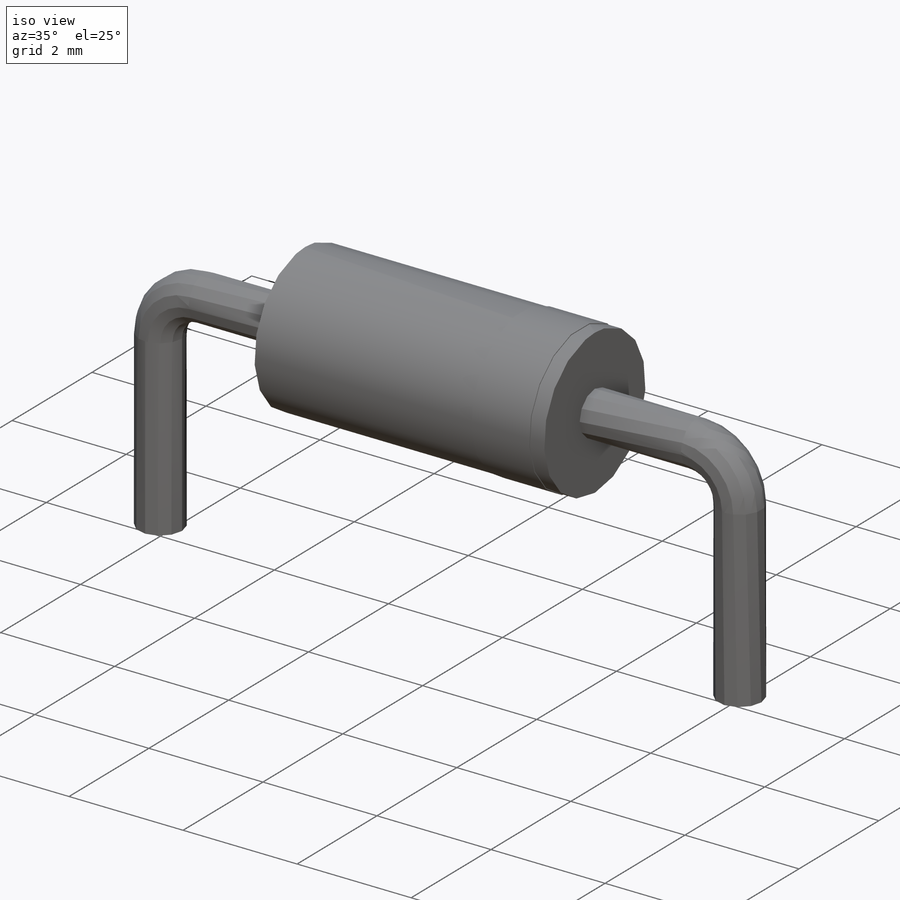
[diagram: iso view]
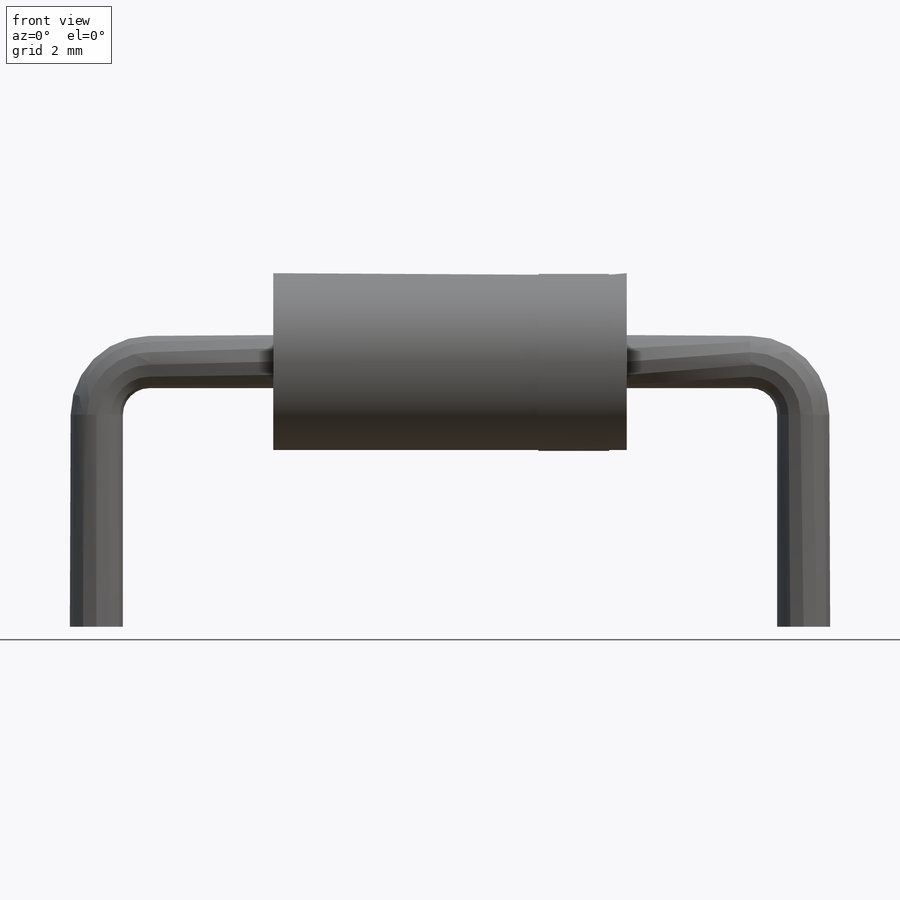
[diagram: front view]
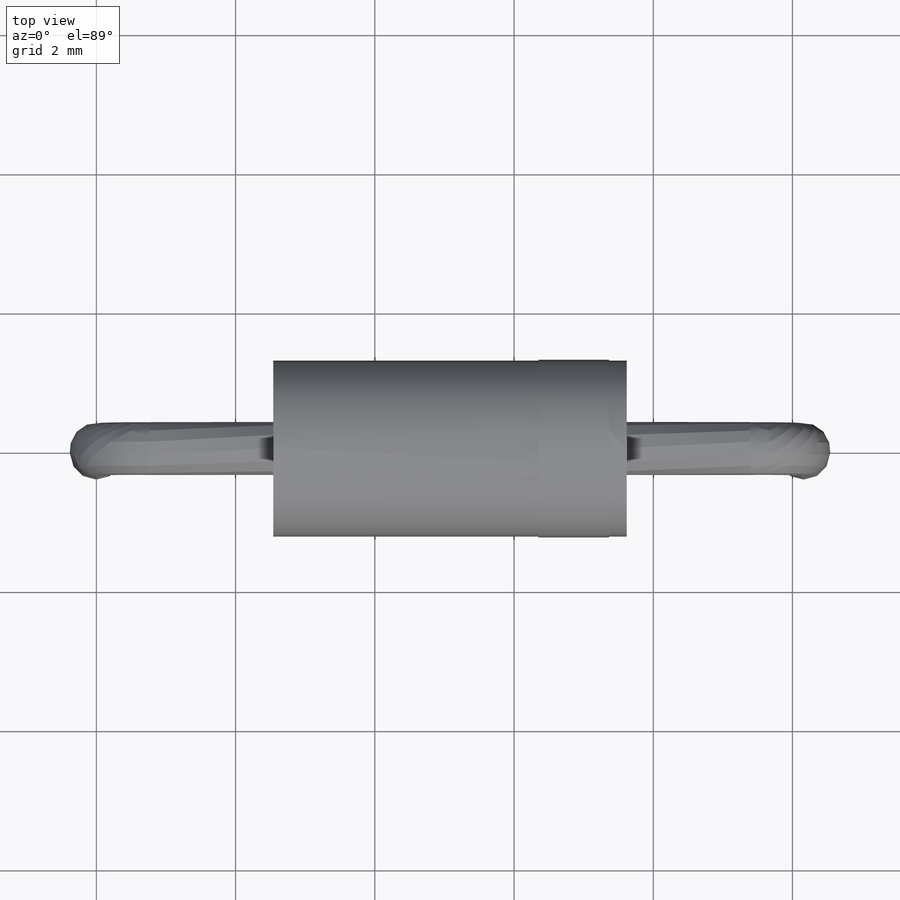
[diagram: top view]
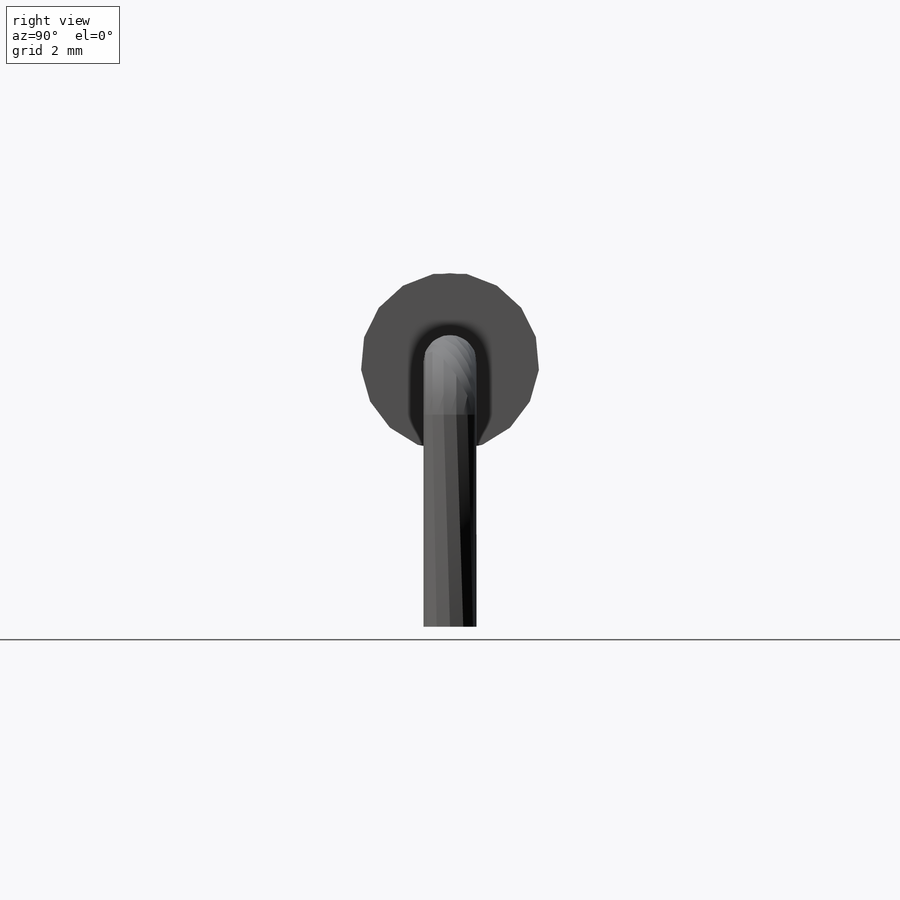
[diagram: right view]
SOLIDWORKS PART (.sldprt)
format: sldprt  version: not decoded by parser v0  size: 189,440 bytes
history: native  units: mm
features: sketch x5, plane x3, extrude x2, material x1, sweep x1, mirror x1 (+12 scaffold rows collapsed)
feature tree (25):
  scaffold x12  (default folders/planes/origin — collapsed)
  material  "Material <not specified>"
  sketch  "Sketch2"  dims[c1.D4=0.762mm c1.D1=3.048mm c1.D2=2.54mm c1.D3=1.778mm c2.D1=3.048mm c2.D2=2.54mm]
  plane  "Plane1"
  sketch  "Sketch3"  dims[D1=0.762mm]
  sweep  "Base-Sweep"
  sketch  "Sketch4"  dims[D1=2.54mm]
  extrude  "Boss-Extrude1"  Depth=2.54mm
  mirror  "Boss-Mirror1"
  plane  "Plane2"  Offset=3.81mm
  sketch  "Sketch5"  dims[D1=2.5654mm]
  extrude  "Boss-Extrude2"  Depth=1.016mm
  plane  "Board Surface"  Offset=0.762mm
  sketch  "Component_Outline"
decode coverage: 6 of 9 modeling features carry decoded parameters
note: suppression state not decoded; provenance and decode notes live in map.json
